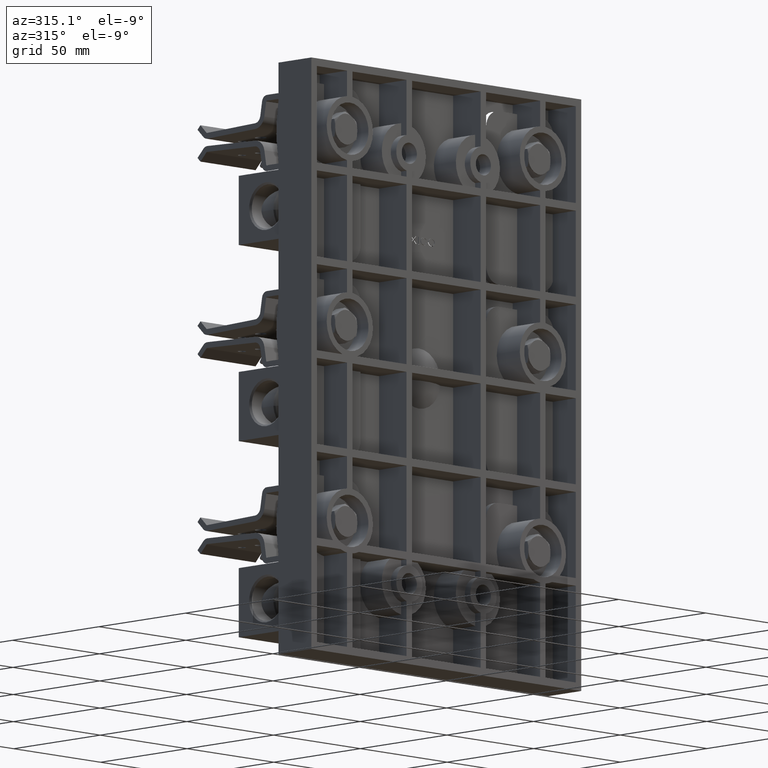
[diagram: clean part render]
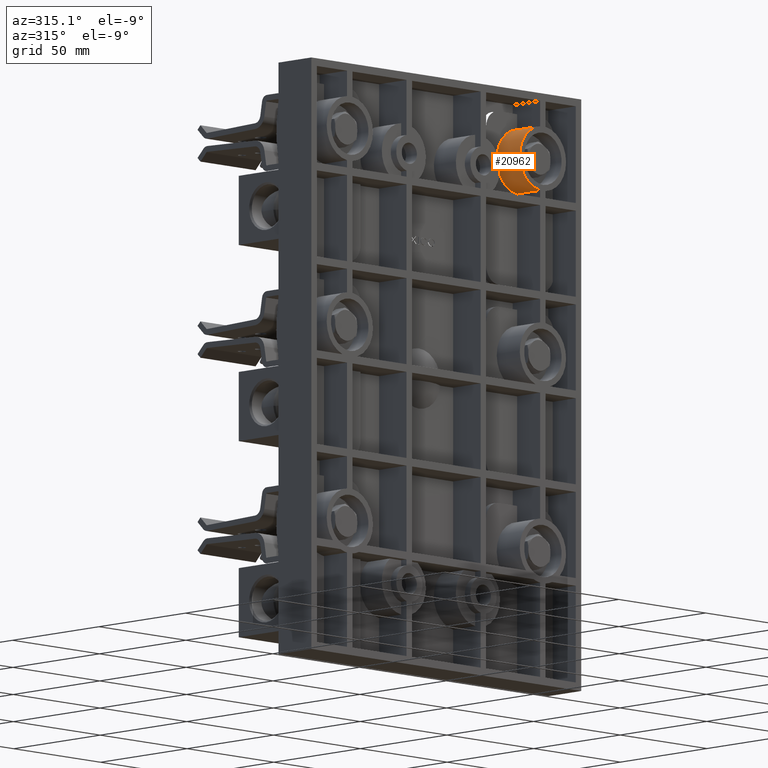
[diagram: same view with one face highlighted and labeled with its STEP entity id]
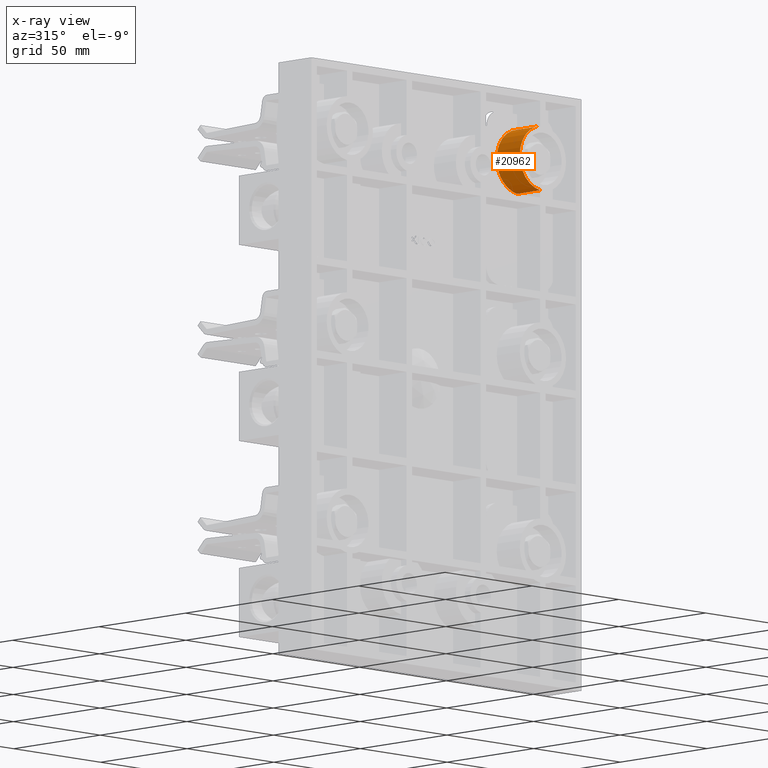
[diagram: x-ray of the same camera — body ghosted, the highlighted face saturated]
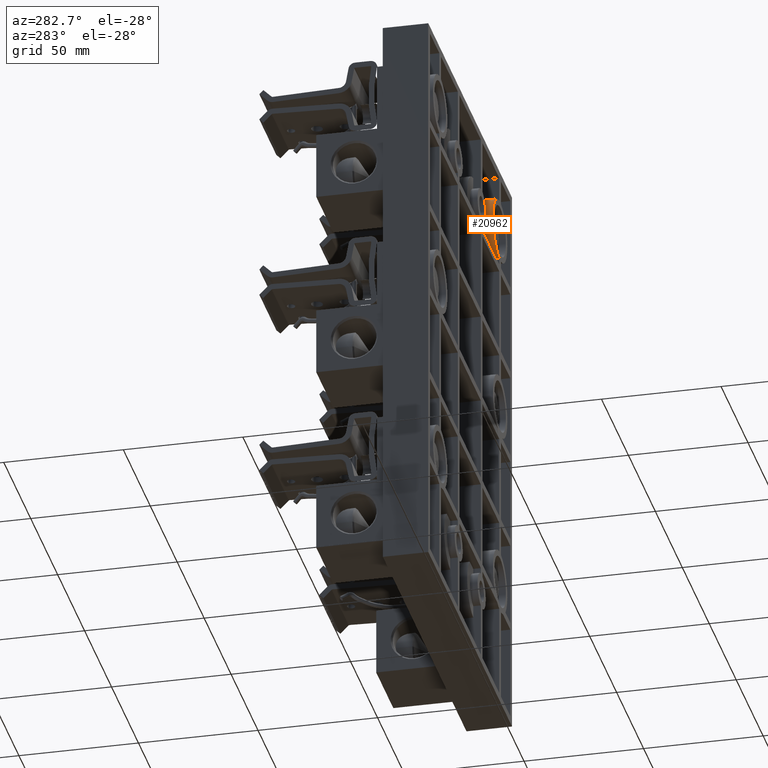
[diagram: same view with one face highlighted and labeled with its STEP entity id]
A machine part, auxiliary view. The second image highlights one B-rep face of the part: STEP entity #20962.
The next image is the same camera in x-ray: the body ghosted, the highlighted face saturated — about 0% of this face is hidden behind the body in this view.
A second angle (auxiliary view) of the same face is appended — the face is thin or edge-on in the first view.
In plain terms, the highlighted cylindrical surface (edge-blend (fillet) strip) has radius 13.335 mm, axis along (-0, 1, -0).
Its self-contained STEP definition (entity closure, byte-faithful):
#632 = CARTESIAN_POINT ( 'NONE',  ( 2.127499999999999100, 0.5250000000000000200, 3.228733513450174000 ) ) ;
#941 = ORIENTED_EDGE ( 'NONE', *, *, #25509, .T. ) ;
#994 = VERTEX_POINT ( 'NONE', #21912 ) ;
#6382 = DIRECTION ( 'NONE',  ( -0.0000000000000000000, 1.000000000000000000, -0.0000000000000000000 ) ) ;
#9033 = VERTEX_POINT ( 'NONE', #35049 ) ;
#11440 = LINE ( 'NONE', #29029, #35130 ) ;
#11735 = AXIS2_PLACEMENT_3D ( 'NONE', #39518, #12884, #43997 ) ;
#12645 = DIRECTION ( 'NONE',  ( 0.0000000000000000000, 0.0000000000000000000, 1.000000000000000000 ) ) ;
#12884 = DIRECTION ( 'NONE',  ( -0.0000000000000000000, 1.000000000000000000, 0.0000000000000000000 ) ) ;
#13787 = VERTEX_POINT ( 'NONE', #29824 ) ;
#14196 = ORIENTED_EDGE ( 'NONE', *, *, #40634, .T. ) ;
#14905 = AXIS2_PLACEMENT_3D ( 'NONE', #16884, #21352, #12645 ) ;
#15806 = CIRCLE ( 'NONE', #31469, 0.5249999999999994700 ) ;
#16884 = CARTESIAN_POINT ( 'NONE',  ( 2.189999999999999100, -1.174924240491750100, 3.749999999999999600 ) ) ;
#19652 = VECTOR ( 'NONE', #53245, 39.37007874015748100 ) ;
#20962 = ADVANCED_FACE ( 'NONE', ( #21298 ), #45697, .T. ) ;
#21298 = FACE_OUTER_BOUND ( 'NONE', #35560, .T. ) ;
#21352 = DIRECTION ( 'NONE',  ( -0.0000000000000000000, 1.000000000000000000, -0.0000000000000000000 ) ) ;
#21615 = CIRCLE ( 'NONE', #11735, 0.5249999999999994700 ) ;
#21912 = CARTESIAN_POINT ( 'NONE',  ( 2.127499999999999100, 0.5249999999999972500, 4.271266486549825100 ) ) ;
#25509 = EDGE_CURVE ( 'NONE', #13787, #9033, #21615, .T. ) ;
#25602 = DIRECTION ( 'NONE',  ( 0.0000000000000000000, -1.000000000000000000, 0.0000000000000000000 ) ) ;
#26527 = CARTESIAN_POINT ( 'NONE',  ( 2.127499999999999100, -8.640965624524961100, 4.271266486549825100 ) ) ;
#29029 = CARTESIAN_POINT ( 'NONE',  ( 2.127499999999999100, -8.640965624524961100, 3.228733513450174500 ) ) ;
#29346 = EDGE_CURVE ( 'NONE', #13787, #36506, #11440, .T. ) ;
#29824 = CARTESIAN_POINT ( 'NONE',  ( 2.127499999999999100, 0.0000000000000000000, 3.228733513450174500 ) ) ;
#31469 = AXIS2_PLACEMENT_3D ( 'NONE', #52317, #25602, #56757 ) ;
#31518 = LINE ( 'NONE', #26527, #19652 ) ;
#35049 = CARTESIAN_POINT ( 'NONE',  ( 2.127499999999999100, 0.0000000000000000000, 4.271266486549825100 ) ) ;
#35130 = VECTOR ( 'NONE', #6382, 39.37007874015748100 ) ;
#35560 = EDGE_LOOP ( 'NONE', ( #14196, #53053, #36194, #941 ) ) ;
#36194 = ORIENTED_EDGE ( 'NONE', *, *, #29346, .F. ) ;
#36506 = VERTEX_POINT ( 'NONE', #632 ) ;
#39518 = CARTESIAN_POINT ( 'NONE',  ( 2.189999999999999100, 0.0000000000000000000, 3.749999999999999600 ) ) ;
#40634 = EDGE_CURVE ( 'NONE', #9033, #994, #31518, .T. ) ;
#43997 = DIRECTION ( 'NONE',  ( 0.0000000000000000000, 0.0000000000000000000, 1.000000000000000000 ) ) ;
#45697 = CYLINDRICAL_SURFACE ( 'NONE', #14905, 0.5249999999999994700 ) ;
#52317 = CARTESIAN_POINT ( 'NONE',  ( 2.189999999999999100, 0.5250000000000000200, 3.749999999999999600 ) ) ;
#53053 = ORIENTED_EDGE ( 'NONE', *, *, #53474, .T. ) ;
#53245 = DIRECTION ( 'NONE',  ( -0.0000000000000000000, 1.000000000000000000, -0.0000000000000000000 ) ) ;
#53474 = EDGE_CURVE ( 'NONE', #994, #36506, #15806, .T. ) ;
#56757 = DIRECTION ( 'NONE',  ( 0.0000000000000000000, 0.0000000000000000000, -1.000000000000000000 ) ) ;